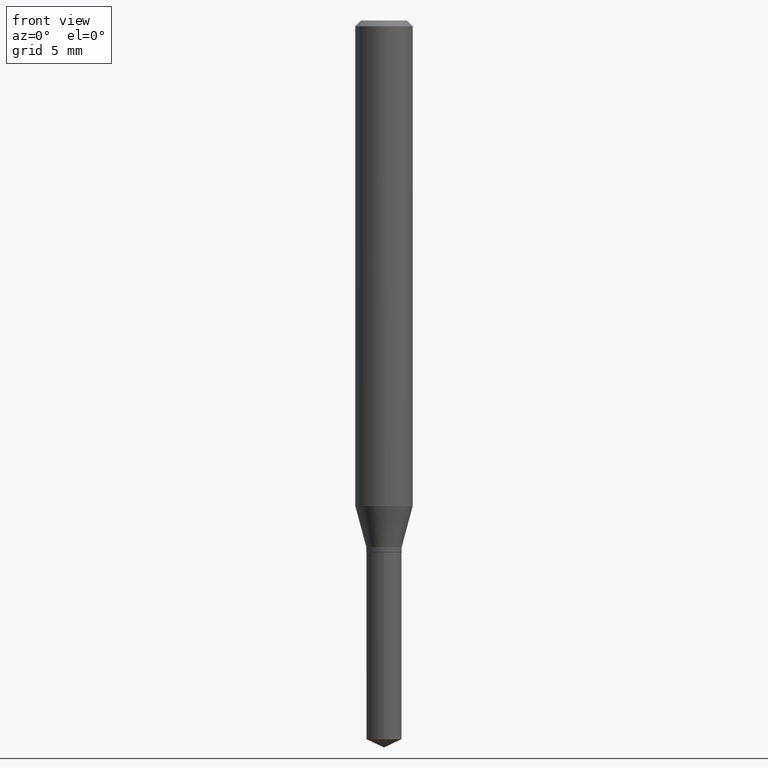
[diagram: clean part render]
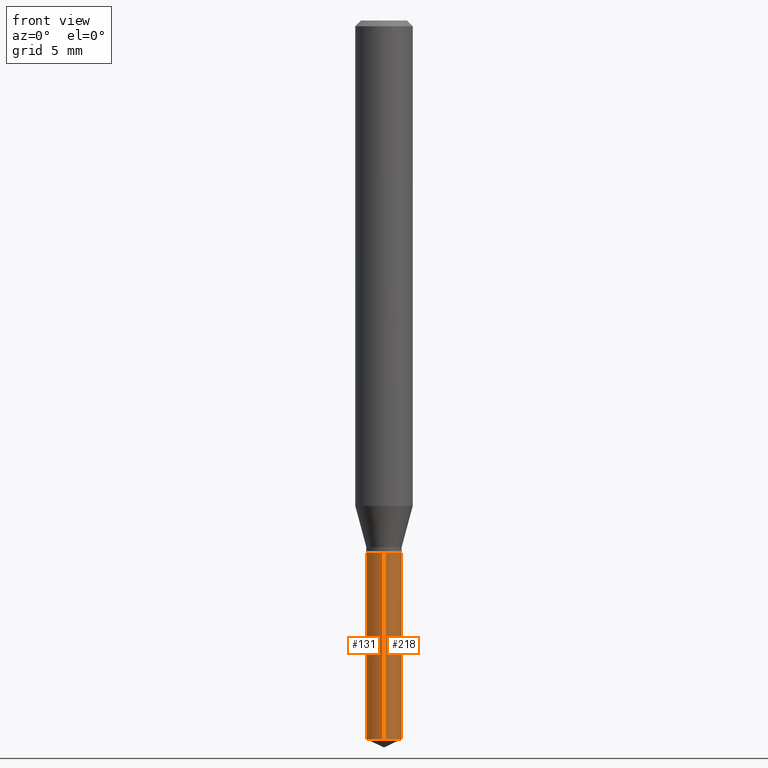
[diagram: same view with one multi-face feature highlighted, each face labeled with its STEP entity id]
A machine part, front view. The highlighted faces form ONE feature: a constant-radius fillet chain: 2 tangent blend faces with common blend radius 0.9246 mm. The faces share edges in the B-rep.
Their STEP definitions:
[1] entity #218 (Cylinder):
#3 = VERTEX_POINT ( 'NONE', #420 ) ;
#18 = DIRECTION ( 'NONE',  ( -2.445402730703145379E-29, 3.491575962694140016E-15, 1.000000000000000000 ) ) ;
#23 = VECTOR ( 'NONE', #18, 39.37007874015748143 ) ;
#43 = ORIENTED_EDGE ( 'NONE', *, *, #474, .T. ) ;
#53 = AXIS2_PLACEMENT_3D ( 'NONE', #269, #342, #277 ) ;
#58 = LINE ( 'NONE', #472, #23 ) ;
#59 = CARTESIAN_POINT ( 'NONE',  ( 2.676565608369631794E-29, -3.821426325363822773E-15, -1.094499999999999806 ) ) ;
#117 = EDGE_LOOP ( 'NONE', ( #199, #43, #330, #206 ) ) ;
#147 = VERTEX_POINT ( 'NONE', #484 ) ;
#182 = DIRECTION ( 'NONE',  ( -2.445402730703145379E-29, 3.491575962694140016E-15, 1.000000000000000000 ) ) ;
#195 = EDGE_CURVE ( 'NONE', #147, #261, #361, .T. ) ;
#199 = ORIENTED_EDGE ( 'NONE', *, *, #294, .T. ) ;
#206 = ORIENTED_EDGE ( 'NONE', *, *, #210, .F. ) ;
#210 = EDGE_CURVE ( 'NONE', #456, #147, #225, .T. ) ;
#218 = ADVANCED_FACE ( 'NONE', ( #479 ), #310, .T. ) ;
#225 = LINE ( 'NONE', #376, #441 ) ;
#242 = CARTESIAN_POINT ( 'NONE',  ( -2.541798414677438025E-16, -0.03640000000000515740, -1.479126401243157751 ) ) ;
#256 = DIRECTION ( 'NONE',  ( -2.445402730703145379E-29, 3.491575962694140016E-15, 1.000000000000000000 ) ) ;
#261 = VERTEX_POINT ( 'NONE', #466 ) ;
#269 = CARTESIAN_POINT ( 'NONE',  ( 2.676565608369631794E-29, -3.821426325363822773E-15, -1.094499999999999806 ) ) ;
#277 = DIRECTION ( 'NONE',  ( -6.982962677686265922E-15, -1.000000000000000000, 3.752538452835526126E-15 ) ) ;
#294 = EDGE_CURVE ( 'NONE', #456, #3, #322, .T. ) ;
#310 = CYLINDRICAL_SURFACE ( 'NONE', #53, 0.03640000000000000180 ) ;
#317 = DIRECTION ( 'NONE',  ( -2.445402730703145379E-29, 3.491575962694140016E-15, 1.000000000000000000 ) ) ;
#319 = CARTESIAN_POINT ( 'NONE',  ( 3.617132060270173400E-29, -5.164378622561984318E-15, -1.479126401243157751 ) ) ;
#322 = CIRCLE ( 'NONE', #348, 0.03640000000000000180 ) ;
#330 = ORIENTED_EDGE ( 'NONE', *, *, #195, .F. ) ;
#342 = DIRECTION ( 'NONE',  ( -2.445402730703145379E-29, 3.491575962694140016E-15, 1.000000000000000000 ) ) ;
#348 = AXIS2_PLACEMENT_3D ( 'NONE', #319, #317, #357 ) ;
#357 = DIRECTION ( 'NONE',  ( -6.982962677686265922E-15, -1.000000000000000000, 0.000000000000000000 ) ) ;
#361 = CIRCLE ( 'NONE', #422, 0.03640000000000000180 ) ;
#376 = CARTESIAN_POINT ( 'NONE',  ( -2.541798414677533675E-16, -0.03640000000000382513, -1.094499999999999806 ) ) ;
#409 = DIRECTION ( 'NONE',  ( -6.982962677686265922E-15, -1.000000000000000000, 3.752538452835526126E-15 ) ) ;
#420 = CARTESIAN_POINT ( 'NONE',  ( 2.586375558167125708E-16, 0.03639999999999481844, -1.479126401243157751 ) ) ;
#422 = AXIS2_PLACEMENT_3D ( 'NONE', #59, #256, #409 ) ;
#441 = VECTOR ( 'NONE', #182, 39.37007874015748143 ) ;
#456 = VERTEX_POINT ( 'NONE', #242 ) ;
#466 = CARTESIAN_POINT ( 'NONE',  ( 2.586375558167126694E-16, 0.03639999999999618541, -1.094500000000000028 ) ) ;
#472 = CARTESIAN_POINT ( 'NONE',  ( 2.586375558167032031E-16, 0.03639999999999618541, -1.094500000000000028 ) ) ;
#474 = EDGE_CURVE ( 'NONE', #3, #261, #58, .T. ) ;
#479 = FACE_OUTER_BOUND ( 'NONE', #117, .T. ) ;
#484 = CARTESIAN_POINT ( 'NONE',  ( -2.541798414677533675E-16, -0.03640000000000382513, -1.094499999999999806 ) ) ;
[2] entity #131 (Cylinder):
#3 = VERTEX_POINT ( 'NONE', #420 ) ;
#18 = DIRECTION ( 'NONE',  ( -2.445402730703145379E-29, 3.491575962694140016E-15, 1.000000000000000000 ) ) ;
#21 = FACE_OUTER_BOUND ( 'NONE', #188, .T. ) ;
#23 = VECTOR ( 'NONE', #18, 39.37007874015748143 ) ;
#58 = LINE ( 'NONE', #472, #23 ) ;
#89 = CIRCLE ( 'NONE', #469, 0.03640000000000000180 ) ;
#94 = CARTESIAN_POINT ( 'NONE',  ( 2.676565608369631794E-29, -3.821426325363822773E-15, -1.094499999999999806 ) ) ;
#98 = CIRCLE ( 'NONE', #126, 0.03640000000000000180 ) ;
#126 = AXIS2_PLACEMENT_3D ( 'NONE', #287, #180, #174 ) ;
#131 = ADVANCED_FACE ( 'NONE', ( #21 ), #190, .T. ) ;
#147 = VERTEX_POINT ( 'NONE', #484 ) ;
#174 = DIRECTION ( 'NONE',  ( -6.982962677686265922E-15, -1.000000000000000000, 0.000000000000000000 ) ) ;
#180 = DIRECTION ( 'NONE',  ( -2.445402730703145379E-29, 3.491575962694140016E-15, 1.000000000000000000 ) ) ;
#182 = DIRECTION ( 'NONE',  ( -2.445402730703145379E-29, 3.491575962694140016E-15, 1.000000000000000000 ) ) ;
#188 = EDGE_LOOP ( 'NONE', ( #220, #374, #216, #380 ) ) ;
#190 = CYLINDRICAL_SURFACE ( 'NONE', #227, 0.03640000000000000180 ) ;
#197 = DIRECTION ( 'NONE',  ( -6.982962677686265922E-15, -1.000000000000000000, 3.752538452835526126E-15 ) ) ;
#210 = EDGE_CURVE ( 'NONE', #456, #147, #225, .T. ) ;
#216 = ORIENTED_EDGE ( 'NONE', *, *, #210, .T. ) ;
#220 = ORIENTED_EDGE ( 'NONE', *, *, #474, .F. ) ;
#225 = LINE ( 'NONE', #376, #441 ) ;
#227 = AXIS2_PLACEMENT_3D ( 'NONE', #403, #328, #292 ) ;
#242 = CARTESIAN_POINT ( 'NONE',  ( -2.541798414677438025E-16, -0.03640000000000515740, -1.479126401243157751 ) ) ;
#261 = VERTEX_POINT ( 'NONE', #466 ) ;
#287 = CARTESIAN_POINT ( 'NONE',  ( 3.617132060270173400E-29, -5.164378622561984318E-15, -1.479126401243157751 ) ) ;
#292 = DIRECTION ( 'NONE',  ( -6.982962677686265922E-15, -1.000000000000000000, 3.752538452835526126E-15 ) ) ;
#328 = DIRECTION ( 'NONE',  ( -2.445402730703145379E-29, 3.491575962694140016E-15, 1.000000000000000000 ) ) ;
#372 = EDGE_CURVE ( 'NONE', #261, #147, #89, .T. ) ;
#374 = ORIENTED_EDGE ( 'NONE', *, *, #471, .T. ) ;
#376 = CARTESIAN_POINT ( 'NONE',  ( -2.541798414677533675E-16, -0.03640000000000382513, -1.094499999999999806 ) ) ;
#380 = ORIENTED_EDGE ( 'NONE', *, *, #372, .F. ) ;
#403 = CARTESIAN_POINT ( 'NONE',  ( 2.676565608369631794E-29, -3.821426325363822773E-15, -1.094499999999999806 ) ) ;
#407 = DIRECTION ( 'NONE',  ( -2.445402730703145379E-29, 3.491575962694140016E-15, 1.000000000000000000 ) ) ;
#420 = CARTESIAN_POINT ( 'NONE',  ( 2.586375558167125708E-16, 0.03639999999999481844, -1.479126401243157751 ) ) ;
#441 = VECTOR ( 'NONE', #182, 39.37007874015748143 ) ;
#456 = VERTEX_POINT ( 'NONE', #242 ) ;
#466 = CARTESIAN_POINT ( 'NONE',  ( 2.586375558167126694E-16, 0.03639999999999618541, -1.094500000000000028 ) ) ;
#469 = AXIS2_PLACEMENT_3D ( 'NONE', #94, #407, #197 ) ;
#471 = EDGE_CURVE ( 'NONE', #3, #456, #98, .T. ) ;
#472 = CARTESIAN_POINT ( 'NONE',  ( 2.586375558167032031E-16, 0.03639999999999618541, -1.094500000000000028 ) ) ;
#474 = EDGE_CURVE ( 'NONE', #3, #261, #58, .T. ) ;
#484 = CARTESIAN_POINT ( 'NONE',  ( -2.541798414677533675E-16, -0.03640000000000382513, -1.094499999999999806 ) ) ;